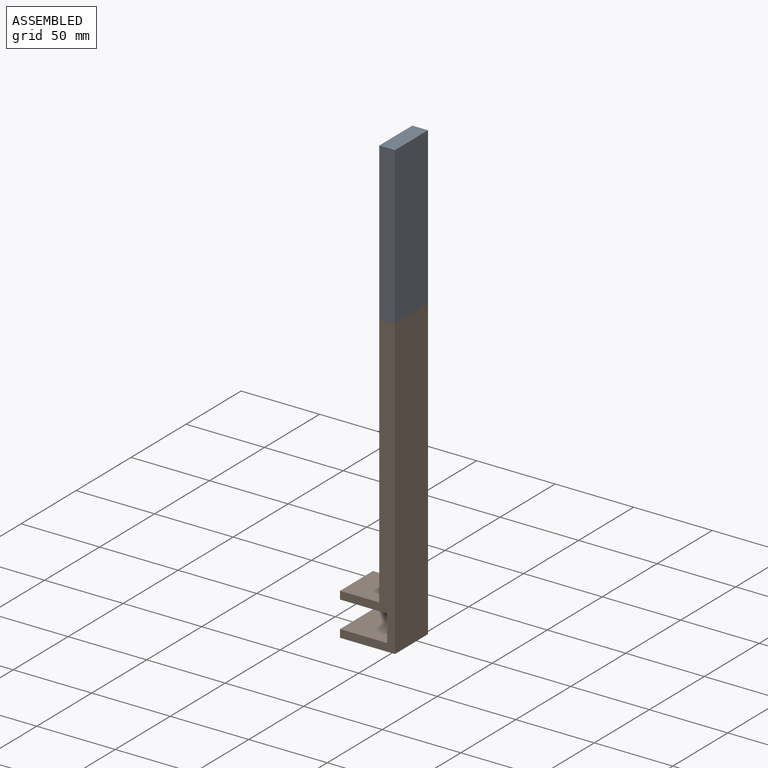
[diagram: assembled view]
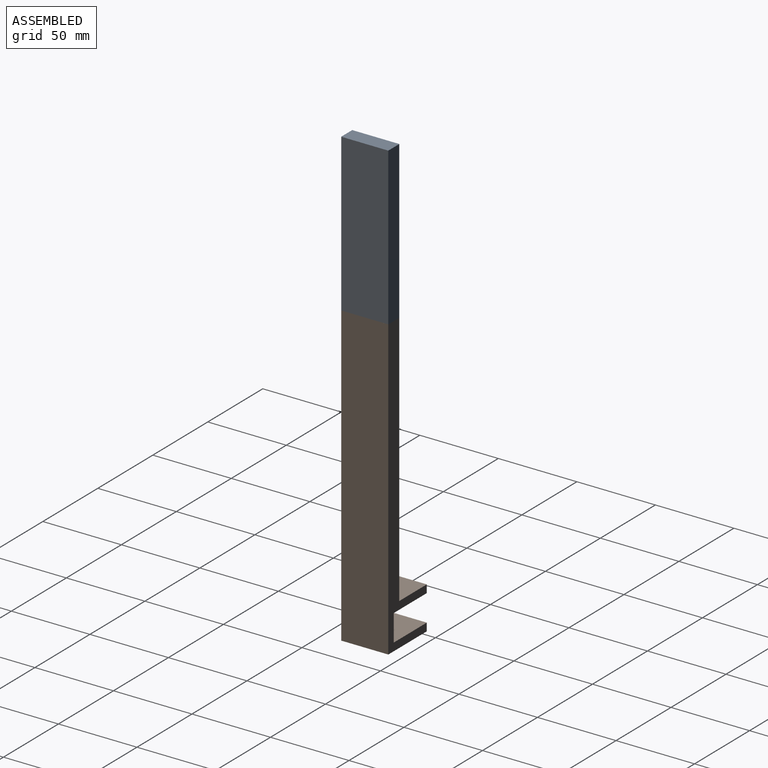
[diagram: assembled view, second angle]
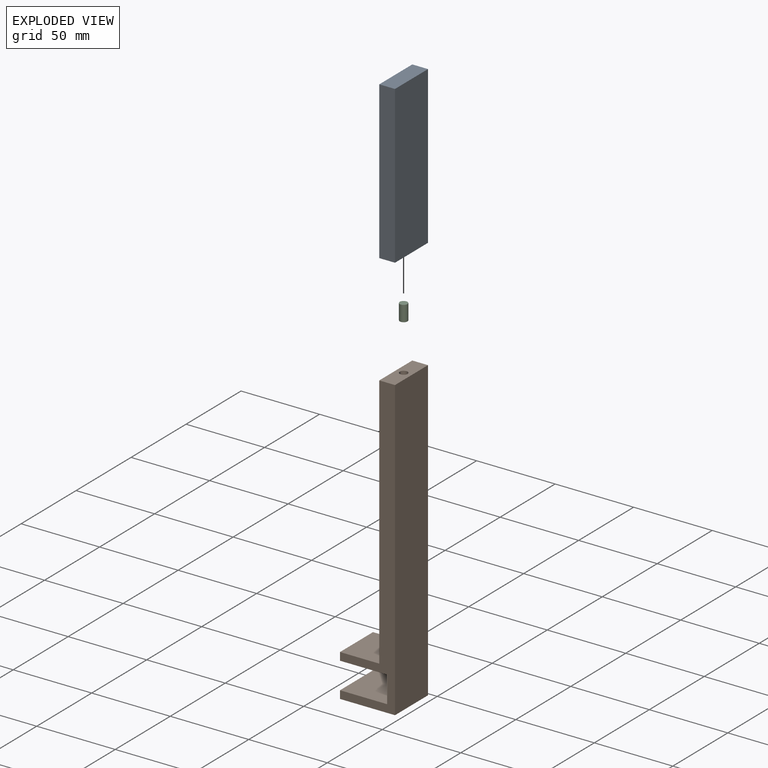
[diagram: exploded view]
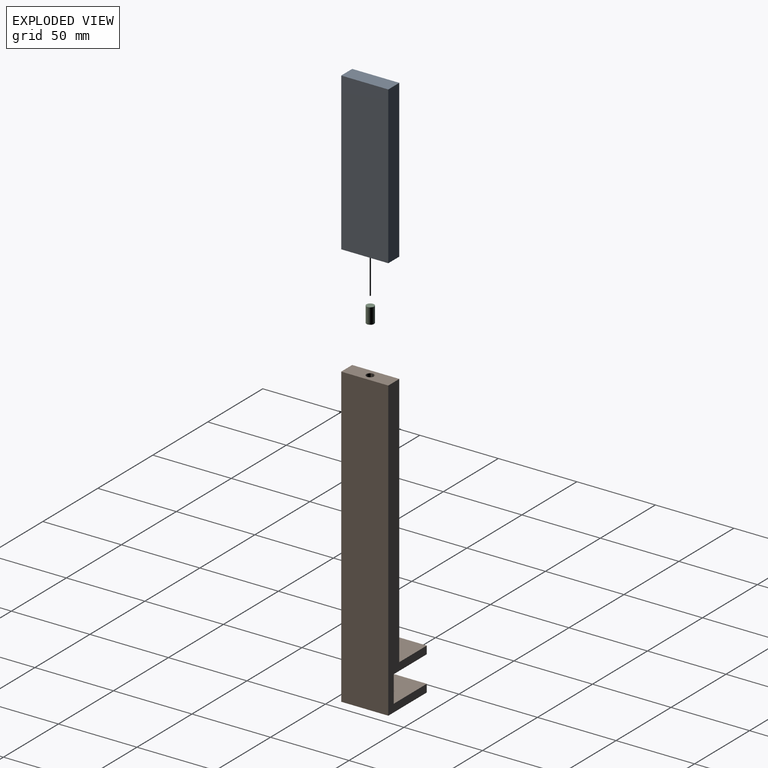
[diagram: exploded view, second angle]
ASSEMBLY  parts=3 mates=2
PART A: 8 faces, bbox 10x30x100 mm
  f0: plane 100x10mm, normal (0,1,0), area 1000mm2, adj f1,f3,f4,f5
  f1: plane 100x30mm, normal (-1,0,0), area 3000mm2, adj f0,f2,f4,f5
  f2: plane 100x10mm, normal (0,-1,0), area 1000mm2, adj f1,f3,f4,f5
  f3: plane 100x30mm, normal (1,0,0), area 3000mm2, adj f0,f2,f4,f5
  f4: plane 30x10mm, normal (0,0,1), area 300mm2, adj f0,f1,f2,f3
  f5: plane 30x10mm, normal (0,0,-1), area 280.4mm2, adj f0,f1,f2,f3,f7
  f6: cone r=0mm half-angle=59deg, axis (0,0,-1), area 22.9mm2, adj f7
  f7: cylinder r=2.5mm len=10mm, axis (0,0,-1), area 157.1mm2, adj f5,f6
PART B: 14 faces, bbox 35x30x190 mm
  f0: plane 35x30mm, normal (0,0,-1), area 1050mm2, adj f1,f9,f10,f11
  f1: plane 190x30mm, normal (1,0,0), area 5700mm2, adj f0,f2,f10,f11
  f2: plane 30x10mm, normal (0,0,1), area 280.4mm2, adj f1,f3,f10,f11,f13
  f3: plane 163x30mm, normal (-1,0,0), area 4890mm2, adj f2,f4,f10,f11
  f4: plane 30x25mm, normal (0,0,1), area 750mm2, adj f3,f5,f10,f11
  f5: plane 30x5mm, normal (-1,0,0), area 150mm2, adj f4,f6,f10,f11
  f6: plane 30x30mm, normal (0,0,-1), area 900mm2, adj f5,f7,f10,f11
  f7: plane 30x17mm, normal (-1,0,0), area 510mm2, adj f6,f8,f10,f11
  f8: plane 30x30mm, normal (0,0,1), area 900mm2, adj f7,f9,f10,f11
  f9: plane 30x5mm, normal (-1,0,0), area 150mm2, adj f0,f8,f10,f11
  f10: plane 190x35mm, normal (0,-1,0), area 2065mm2, adj f0,f1,f2,f3,f4,f5,f6,f7
  f11: plane 190x35mm, normal (0,1,0), area 2065mm2, adj f0,f1,f2,f3,f4,f5,f6,f7
  f12: cone r=0mm half-angle=59deg, axis (0,0,1), area 22.9mm2, adj f13
  f13: cylinder r=2.5mm len=10mm, axis (0,0,1), area 157.1mm2, adj f2,f12
PART C: 3 faces, bbox 4.9x4.9x10 mm
  f0: cylinder r=2.45mm len=10mm, axis (0,0,-1), area 153.9mm2, adj f1,f2
  f1: plane 4.9x4.9mm, normal (0,0,1), area 18.9mm2, adj f0
  f2: plane 4.9x4.9mm, normal (0,0,-1), area 18.9mm2, adj f0
PLACE A t=(0.73,-9.45,-5.69)mm
PLACE B t=(0.73,-9.45,-5.69)mm
PLACE C t=(0.73,-9.45,-5.69)mm
MATE revolute B.f12 <-> C.f0  axis (0,0,1) through (-4.27,-24.45,157.31)mm
MATE revolute A.f6 <-> C.f0  axis (0,0,-1) through (-4.27,-24.45,157.31)mm
